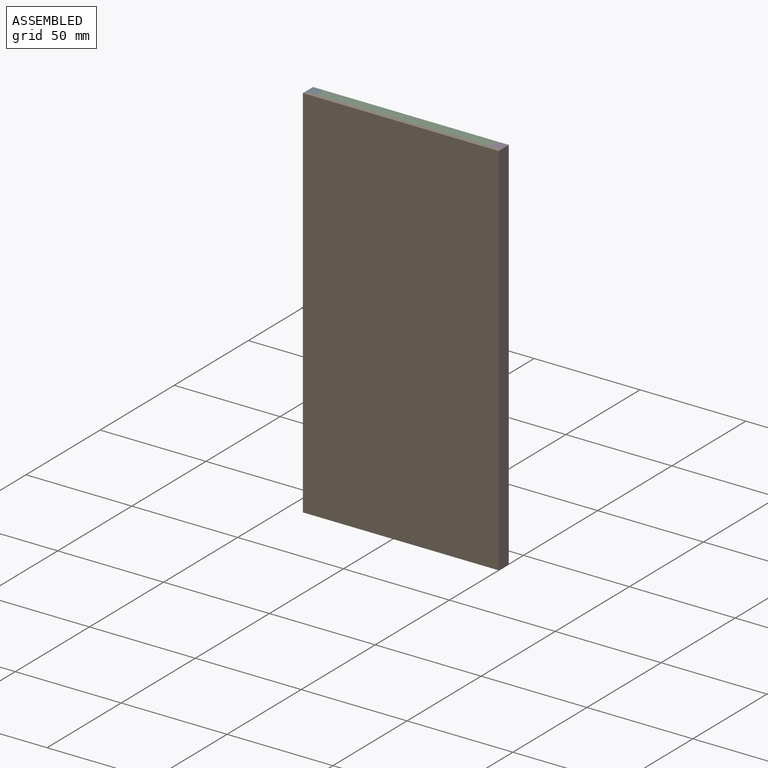
[diagram: assembled view]
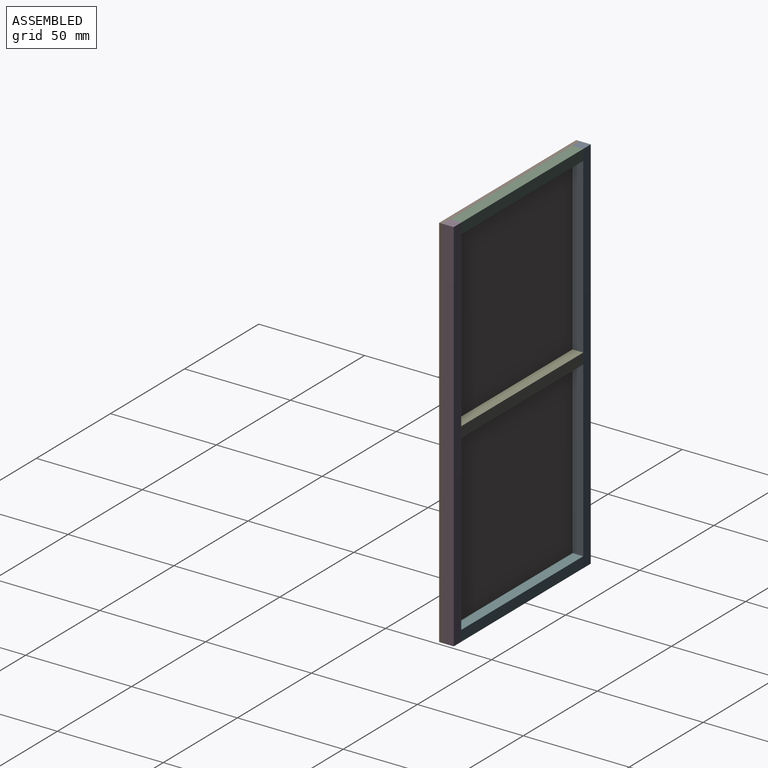
[diagram: assembled view, second angle]
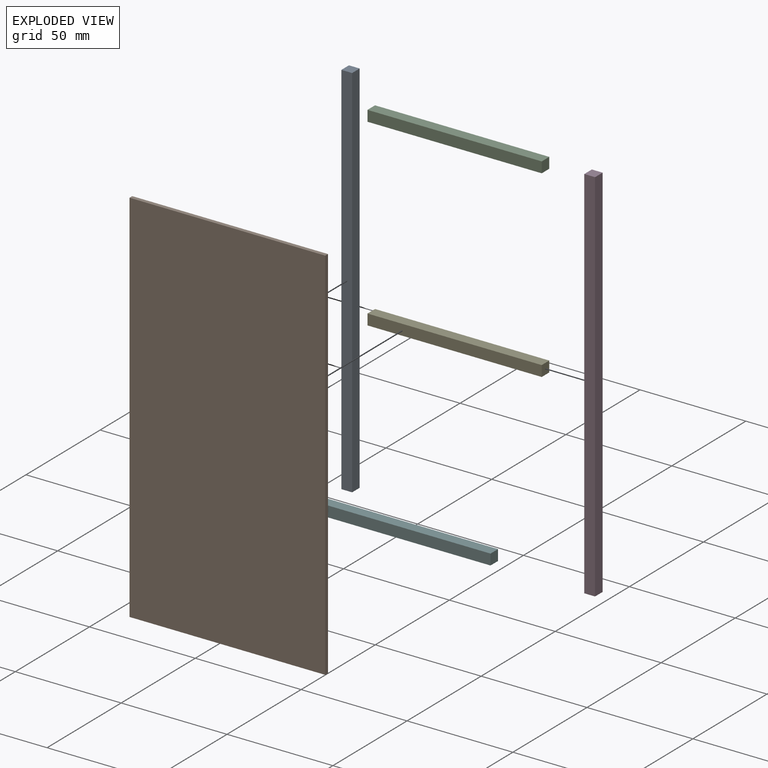
[diagram: exploded view]
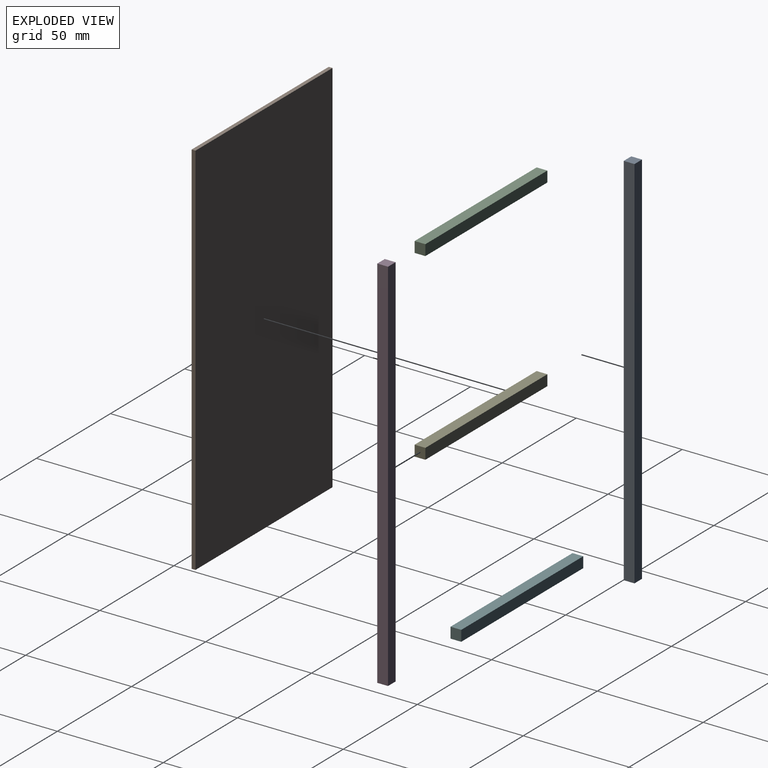
[diagram: exploded view, second angle]
ASSEMBLY  parts=6 mates=3
PART A: 6 faces, bbox 5.1x5.1x179 mm
  f0: plane 179x5.08mm, normal (-1,0,0), area 909.3mm2, adj f1,f3,f4,f5
  f1: plane 179x5.08mm, normal (0,-1,0), area 909.3mm2, adj f0,f2,f4,f5
  f2: plane 179x5.08mm, normal (1,0,0), area 909.3mm2, adj f1,f3,f4,f5
  f3: plane 179x5.08mm, normal (0,1,0), area 909.3mm2, adj f0,f2,f4,f5
  f4: plane 5.08x5.08mm, normal (0,0,1), area 25.8mm2, adj f0,f1,f2,f3
  f5: plane 5.08x5.08mm, normal (0,0,-1), area 25.8mm2, adj f0,f1,f2,f3
PART B: 6 faces, bbox 92.5x1.8x179 mm
  f0: plane 178.98x92.46mm, normal (0,1,0), area 16548.5mm2, adj f2,f3,f4,f5
  f1: plane 178.98x92.46mm, normal (0,-1,0), area 16548.5mm2, adj f2,f3,f4,f5
  f2: plane 178.98x1.8mm, normal (-1,0,0), area 322.2mm2, adj f0,f1,f3,f5
  f3: plane 92.46x1.8mm, normal (0,0,1), area 166.4mm2, adj f0,f1,f2,f4
  f4: plane 178.98x1.8mm, normal (1,0,0), area 322.2mm2, adj f0,f1,f3,f5
  f5: plane 92.46x1.8mm, normal (0,0,-1), area 166.4mm2, adj f0,f1,f2,f4
PART C: 6 faces, bbox 5.1x5.1x82.3 mm
  f0: plane 82.3x5.08mm, normal (-1,0,0), area 418.1mm2, adj f1,f3,f4,f5
  f1: plane 82.3x5.08mm, normal (0,-1,0), area 418.1mm2, adj f0,f2,f4,f5
  f2: plane 82.3x5.08mm, normal (1,0,0), area 418.1mm2, adj f1,f3,f4,f5
  f3: plane 82.3x5.08mm, normal (0,1,0), area 418.1mm2, adj f0,f2,f4,f5
  f4: plane 5.08x5.08mm, normal (0,0,1), area 25.8mm2, adj f0,f1,f2,f3
  f5: plane 5.08x5.08mm, normal (0,0,-1), area 25.8mm2, adj f0,f1,f2,f3
PART D: same geometry as A
PART E: same geometry as C
PART F: same geometry as C
PLACE A t=(-357.72,-20.3,-52.29)mm
PLACE B t=(167.64,28.67,-113.29)mm
PLACE C rot(axis=(0,-1,0),90deg) t=(98.64,-20.3,-256.88)mm
PLACE D t=(-270.34,-20.3,-52.29)mm
PLACE E rot(axis=(0,-1,0),90deg) t=(98.64,-20.3,-343.83)mm
PLACE F rot(axis=(0,-1,0),90deg) t=(98.64,-20.3,-430.78)mm
MATE planar C.f4 <-> A.f2  axis (-1,0,0) through (16.34,-17.76,126.71)mm
MATE planar B.f0 <-> A.f1  axis (0,1,0) through (11.26,-20.3,126.71)mm
MATE planar D.f0 <-> C.f5  axis (-1,0,0) through (98.64,-17.76,126.71)mm
